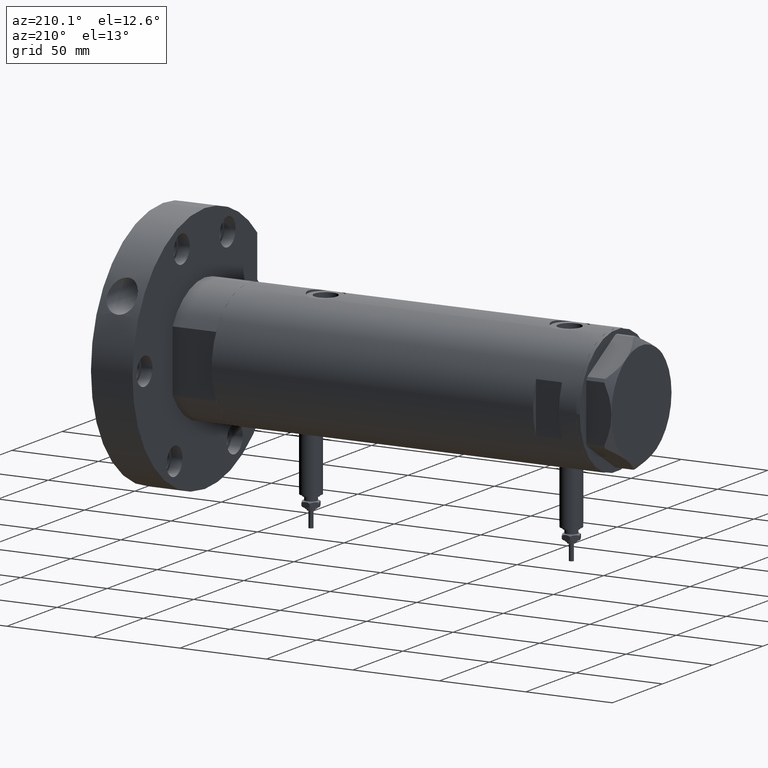
[diagram: clean part render]
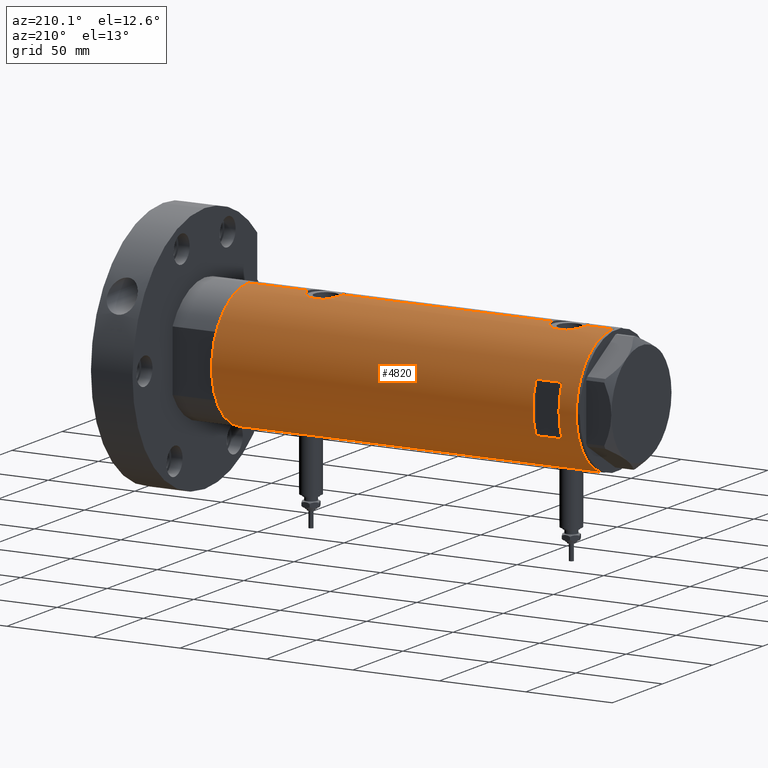
[diagram: same view with one face highlighted and labeled with its STEP entity id]
A machine part, auxiliary view. The second image highlights one B-rep face of the part: STEP entity #4820.
In plain terms, the highlighted cylindrical surface (partial cylindrical patch) has radius 36.5 mm, axis along (-1, -0, 0).
Its self-contained STEP definition (entity closure, byte-faithful):
#3 = ORIENTED_EDGE ( 'NONE', *, *, #4363, .F. ) ;
#47 = CARTESIAN_POINT ( 'NONE',  ( -36.30200038006935870, 3.811959488093746184, 86.36972104836003439 ) ) ;
#60 = EDGE_LOOP ( 'NONE', ( #7366, #5162, #4584, #5704 ) ) ;
#85 = CARTESIAN_POINT ( 'NONE',  ( 35.83170458557578542, 6.955065627744197343, -53.41058328087536466 ) ) ;
#128 = CARTESIAN_POINT ( 'NONE',  ( 35.79715675463678792, 7.130463293899339305, -53.58444415894006596 ) ) ;
#149 = CARTESIAN_POINT ( 'NONE',  ( 35.59366931936804690, 8.089554397885864390, -66.49927319087814226 ) ) ;
#160 = CARTESIAN_POINT ( 'NONE',  ( -35.96805604460922012, 6.209309709790233889, 80.57887241731827999 ) ) ;
#179 = CARTESIAN_POINT ( 'NONE',  ( -36.50000000000000000, 4.469960493350315609E-15, -75.35000000000000853 ) ) ;
#182 = CARTESIAN_POINT ( 'NONE',  ( 35.79766710091575987, 7.135341284989892507, -67.62350520560906375 ) ) ;
#195 = CARTESIAN_POINT ( 'NONE',  ( -36.11206433103227909, 5.308658295084049072, 78.09515351959024088 ) ) ;
#211 = VECTOR ( 'NONE', #4695, 1000.000000000000000 ) ;
#217 = VERTEX_POINT ( 'NONE', #179 ) ;
#218 = CARTESIAN_POINT ( 'NONE',  ( -36.50000000000000000, 4.469960816887837641E-15, -105.4000000000000057 ) ) ;
#230 = EDGE_CURVE ( 'NONE', #5549, #217, #6551, .T. ) ;
#231 = VERTEX_POINT ( 'NONE', #3634 ) ;
#233 = CARTESIAN_POINT ( 'NONE',  ( 14.49137674618942384, 33.50000000000000000, 80.40000000000003411 ) ) ;
#234 = B_SPLINE_CURVE_WITH_KNOTS ( 'NONE', 3,
 ( #3720, #2501, #806, #6017, #4332, #5517, #7165, #6675, #3638, #3111, #728, #182, #5473, #149, #3193, #4294, #3755, #5434 ),
 .UNSPECIFIED., .F., .F.,
 ( 4, 2, 2, 2, 2, 2, 2, 2, 4 ),
 ( -1.084202172485504434E-18, 0.002973648994175745811, 0.003717061242719678360, 0.004460473491263610910, 0.005947297988351454325, 0.007434122485439297739, 0.008920946982527140287, 0.01040777147961498283, 0.01189459597670282365 ),
 .UNSPECIFIED. ) ;
#240 = CARTESIAN_POINT ( 'NONE',  ( -36.35033317675381426, 3.306376218664582645, 76.09229280583950583 ) ) ;
#318 = LINE ( 'NONE', #2670, #3083 ) ;
#323 = DIRECTION ( 'NONE',  ( -0.000000000000000000, -0.000000000000000000, -1.000000000000000000 ) ) ;
#356 = CARTESIAN_POINT ( 'NONE',  ( -36.50000000000000000, 4.469960493350315609E-15, 75.14999999999999147 ) ) ;
#361 = VECTOR ( 'NONE', #7031, 1000.000000000000000 ) ;
#364 = VECTOR ( 'NONE', #3245, 1000.000000000000000 ) ;
#371 = CARTESIAN_POINT ( 'NONE',  ( -36.49292802938587954, 0.8230716655928912440, -75.30906938753517466 ) ) ;
#400 = CARTESIAN_POINT ( 'NONE',  ( 35.83170458557578542, 6.955065627744196455, 87.58941671912465665 ) ) ;
#409 = CARTESIAN_POINT ( 'NONE',  ( 14.49137674618942739, 33.50000000000000000, 95.40000000000001990 ) ) ;
#411 = CARTESIAN_POINT ( 'NONE',  ( -36.30200038006935870, 3.811959488093740411, -64.13027895163995140 ) ) ;
#428 = ORIENTED_EDGE ( 'NONE', *, *, #5585, .F. ) ;
#429 = FACE_OUTER_BOUND ( 'NONE', #7013, .T. ) ;
#444 = CARTESIAN_POINT ( 'NONE',  ( -36.50000000000000711, 0.4083036190459274350, -75.35000000000002274 ) ) ;
#479 = CARTESIAN_POINT ( 'NONE',  ( -35.98846897517729815, 6.089479646546500646, -67.67765108453481560 ) ) ;
#485 = ORIENTED_EDGE ( 'NONE', *, *, #1210, .F. ) ;
#497 = CARTESIAN_POINT ( 'NONE',  ( -14.49137674618942739, 33.50000000000000000, 95.40000000000001990 ) ) ;
#513 = EDGE_CURVE ( 'NONE', #3951, #3988, #3260, .T. ) ;
#541 = EDGE_CURVE ( 'NONE', #2305, #5549, #6074, .T. ) ;
#666 = CARTESIAN_POINT ( 'NONE',  ( 36.29420020483469500, 3.877527130731365901, 71.17901025599704212 ) ) ;
#673 = LINE ( 'NONE', #1798, #1859 ) ;
#696 = CARTESIAN_POINT ( 'NONE',  ( 35.29999999999999716, 9.282241108697832033, -56.87978495245235422 ) ) ;
#728 = CARTESIAN_POINT ( 'NONE',  ( 35.93456089024233790, 6.410413305453382726, -68.29085963204144605 ) ) ;
#740 = CARTESIAN_POINT ( 'NONE',  ( -35.98846897517731236, 6.089479646546502423, 82.82234891546522704 ) ) ;
#778 = CARTESIAN_POINT ( 'NONE',  ( -35.96793274302675059, 6.210029014836887740, 82.21694237679317041 ) ) ;
#806 = CARTESIAN_POINT ( 'NONE',  ( 36.45853166336080164, 1.985123042546143024, -70.45162670417735740 ) ) ;
#814 = CARTESIAN_POINT ( 'NONE',  ( -36.50000000000000000, 1.407447864834978200E-15, 87.65000000000000568 ) ) ;
#827 = ORIENTED_EDGE ( 'NONE', *, *, #6314, .F. ) ;
#904 = CARTESIAN_POINT ( 'NONE',  ( 36.29611582693039651, 3.878758190381167648, 89.63044989099550719 ) ) ;
#907 = LINE ( 'NONE', #7299, #364 ) ;
#938 = CARTESIAN_POINT ( 'NONE',  ( -36.30181775639988473, 3.813582387016785535, 76.43163942425562141 ) ) ;
#950 = CARTESIAN_POINT ( 'NONE',  ( -36.16126303108063667, 4.966520032693295228, -65.28358772254718190 ) ) ;
#957 = EDGE_CURVE ( 'NONE', #2187, #4608, #2934, .T. ) ;
#977 = CARTESIAN_POINT ( 'NONE',  ( -36.44628644024910358, 2.015372769639943495, 75.46971871986416147 ) ) ;
#994 = CARTESIAN_POINT ( 'NONE',  ( -36.26695135241003953, 4.128455078791312793, -73.81037591644739848 ) ) ;
#1020 = CARTESIAN_POINT ( 'NONE',  ( 36.41717583764487642, 2.469534783404760514, 90.09348011175671900 ) ) ;
#1029 = CARTESIAN_POINT ( 'NONE',  ( -36.11206433103226487, 5.308658295084045520, -72.40484648040975912 ) ) ;
#1055 = CARTESIAN_POINT ( 'NONE',  ( 14.49137674618942562, 33.50000000000000000, -105.4000000000000057 ) ) ;
#1059 = CARTESIAN_POINT ( 'NONE',  ( -36.09617453667821252, 5.415318599347968664, -65.97293357327090746 ) ) ;
#1078 = EDGE_CURVE ( 'NONE', #3263, #2187, #2054, .T. ) ;
#1140 = CARTESIAN_POINT ( 'NONE',  ( 36.50000000000000000, 0.000000000000000000, -105.4000000000000057 ) ) ;
#1172 = CARTESIAN_POINT ( 'NONE',  ( 36.50000000000000000, 4.344614706140975428E-19, 90.39999999999999147 ) ) ;
#1176 = EDGE_CURVE ( 'NONE', #6548, #2414, #6574, .T. ) ;
#1210 = EDGE_CURVE ( 'NONE', #4623, #2026, #4812, .T. ) ;
#1250 = CARTESIAN_POINT ( 'NONE',  ( 0.000000000000000000, 0.000000000000000000, 105.4000000000000057 ) ) ;
#1252 = CARTESIAN_POINT ( 'NONE',  ( 36.18948008481302026, 4.772042575486197258, 71.59822368756843503 ) ) ;
#1256 = CARTESIAN_POINT ( 'NONE',  ( 36.29611582693039651, 3.878758190381166759, -51.36955010900450702 ) ) ;
#1288 = CARTESIAN_POINT ( 'NONE',  ( 35.79766710091575987, 7.135341284989890731, 73.37649479439095046 ) ) ;
#1292 = CARTESIAN_POINT ( 'NONE',  ( 36.40008489419981430, 2.709263960908028679, -50.97081895403610474 ) ) ;
#1304 = DIRECTION ( 'NONE',  ( 0.000000000000000000, 0.000000000000000000, 1.000000000000000000 ) ) ;
#1323 = CARTESIAN_POINT ( 'NONE',  ( -36.01679413914728656, 5.919813138266330377, 83.41499691047036436 ) ) ;
#1329 = CARTESIAN_POINT ( 'NONE',  ( 36.00145998247696610, 6.026272765084655703, -52.60449611787613122 ) ) ;
#1366 = CARTESIAN_POINT ( 'NONE',  ( -36.06690560274405044, 5.606949625760678124, 78.63114076041068756 ) ) ;
#1407 = CARTESIAN_POINT ( 'NONE',  ( 36.13018480315371761, 5.199168368309160293, 71.84353501791950691 ) ) ;
#1439 = CARTESIAN_POINT ( 'NONE',  ( -36.26695135241003953, 4.128455078791301247, 76.68962408355262994 ) ) ;
#1498 = CARTESIAN_POINT ( 'NONE',  ( -36.40902375114221456, 2.582415566883933256, -74.79521691469689415 ) ) ;
#1519 = CARTESIAN_POINT ( 'NONE',  ( 0.000000000000000000, 0.000000000000000000, -105.4000000000000057 ) ) ;
#1535 = CARTESIAN_POINT ( 'NONE',  ( -35.96793274302674348, 6.210029014836887740, -68.28305762320682959 ) ) ;
#1601 = CARTESIAN_POINT ( 'NONE',  ( 35.93435287561198521, 6.411571491280765756, 88.08988644922843037 ) ) ;
#1645 = CARTESIAN_POINT ( 'NONE',  ( -36.39522946636253664, 2.769519034821244396, -74.70663923731272860 ) ) ;
#1798 = CARTESIAN_POINT ( 'NONE',  ( -36.50000000000000000, 4.469960816887837641E-15, -105.4000000000000057 ) ) ;
#1859 = VECTOR ( 'NONE', #6426, 1000.000000000000000 ) ;
#1867 = CARTESIAN_POINT ( 'NONE',  ( -36.44504802628534890, 2.011764947064737186, 87.32093644908518115 ) ) ;
#1894 = EDGE_CURVE ( 'NONE', #2305, #3454, #2165, .T. ) ;
#1902 = CARTESIAN_POINT ( 'NONE',  ( -36.49999999999999289, 0.4137727629436736554, 87.65000000000000568 ) ) ;
#1926 = AXIS2_PLACEMENT_3D ( 'NONE', #4609, #7451, #3359 ) ;
#1938 = CARTESIAN_POINT ( 'NONE',  ( -36.16126303108063667, 4.966520032693296116, 85.21641227745284652 ) ) ;
#1941 = CARTESIAN_POINT ( 'NONE',  ( 36.36225053217120262, 3.177096004138046048, 70.91483975524022298 ) ) ;
#1984 = CARTESIAN_POINT ( 'NONE',  ( 36.49999999999999289, 1.005842003469121781, 70.40000000000001990 ) ) ;
#2026 = VERTEX_POINT ( 'NONE', #2490 ) ;
#2037 = DIRECTION ( 'NONE',  ( -0.000000000000000000, -0.000000000000000000, -1.000000000000000000 ) ) ;
#2054 = CIRCLE ( 'NONE', #1926, 36.50000000000000000 ) ;
#2066 = CARTESIAN_POINT ( 'NONE',  ( -36.26643311080166399, 4.132772529026634167, -64.39380594730117480 ) ) ;
#2105 = VERTEX_POINT ( 'NONE', #2452 ) ;
#2110 = CARTESIAN_POINT ( 'NONE',  ( -36.46462099658054967, 1.618684470865504821, -63.05975602975154004 ) ) ;
#2165 = LINE ( 'NONE', #2377, #211 ) ;
#2182 = CARTESIAN_POINT ( 'NONE',  ( -36.19624103943463211, 4.708090268046848159, -64.96938778553862903 ) ) ;
#2187 = VERTEX_POINT ( 'NONE', #409 ) ;
#2201 = EDGE_CURVE ( 'NONE', #4608, #3719, #7323, .T. ) ;
#2217 = CARTESIAN_POINT ( 'NONE',  ( -36.35033317675379294, 3.306376218664579980, -74.40770719416053680 ) ) ;
#2305 = VERTEX_POINT ( 'NONE', #1140 ) ;
#2377 = CARTESIAN_POINT ( 'NONE',  ( 36.50000000000000000, 0.000000000000000000, -105.4000000000000057 ) ) ;
#2399 = CARTESIAN_POINT ( 'NONE',  ( -35.96094343308266161, 6.249843792257633979, 81.81087110344569169 ) ) ;
#2405 = CARTESIAN_POINT ( 'NONE',  ( 35.69321149401849880, 7.633476302278300096, -54.13536927833557399 ) ) ;
#2414 = VERTEX_POINT ( 'NONE', #7109 ) ;
#2416 = VECTOR ( 'NONE', #2037, 1000.000000000000000 ) ;
#2439 = CARTESIAN_POINT ( 'NONE',  ( -36.50000000000000000, 1.407447864834978200E-15, 87.65000000000000568 ) ) ;
#2447 = CARTESIAN_POINT ( 'NONE',  ( 36.45954139109320380, 1.735915671103592794, -50.74863218852989633 ) ) ;
#2452 = CARTESIAN_POINT ( 'NONE',  ( 35.29999999999999716, 9.282241108697832033, -64.32021504754764862 ) ) ;
#2456 = EDGE_CURVE ( 'NONE', #2766, #3988, #4261, .T. ) ;
#2478 = CARTESIAN_POINT ( 'NONE',  ( 36.00287854058830561, 6.017835360302999703, 72.39811882818277411 ) ) ;
#2483 = CARTESIAN_POINT ( 'NONE',  ( 36.18937351723702989, 4.773052864917637805, -51.79864006881157934 ) ) ;
#2490 = CARTESIAN_POINT ( 'NONE',  ( -36.50000000000000000, 4.469960493350315609E-15, 75.14999999999999147 ) ) ;
#2501 = CARTESIAN_POINT ( 'NONE',  ( 36.50000000000000000, 1.005842003469122004, -70.59999999999999432 ) ) ;
#2513 = CARTESIAN_POINT ( 'NONE',  ( 35.72860827204724643, 7.471059959301278752, 73.73474849525591424 ) ) ;
#2531 = ORIENTED_EDGE ( 'NONE', *, *, #7207, .F. ) ;
#2547 = CARTESIAN_POINT ( 'NONE',  ( -36.03936508729894683, 5.782103729777506196, 83.79870532603797528 ) ) ;
#2553 = CARTESIAN_POINT ( 'NONE',  ( 35.29999999999999716, 9.282241108697835585, -105.4000000000000057 ) ) ;
#2632 = CARTESIAN_POINT ( 'NONE',  ( 36.40008489419980720, 2.709263960908030899, 90.02918104596392368 ) ) ;
#2635 = CARTESIAN_POINT ( 'NONE',  ( -36.50000000000000000, 4.469960816887837641E-15, -105.4000000000000057 ) ) ;
#2670 = CARTESIAN_POINT ( 'NONE',  ( -36.50000000000000000, 4.469960816887837641E-15, -105.4000000000000057 ) ) ;
#2707 = CARTESIAN_POINT ( 'NONE',  ( -36.50000000000000000, 0.4083036190459313763, 75.14999999999996305 ) ) ;
#2710 = CARTESIAN_POINT ( 'NONE',  ( 35.69321149401851301, 7.633476302278301873, 86.86463072166442601 ) ) ;
#2756 = CARTESIAN_POINT ( 'NONE',  ( -36.39638105034455151, 2.774378062517169674, -63.48456667300896328 ) ) ;
#2766 = VERTEX_POINT ( 'NONE', #5112 ) ;
#2778 = CARTESIAN_POINT ( 'NONE',  ( 36.48988646280794512, 0.9921857666168150125, 90.36328115134425332 ) ) ;
#2787 = DIRECTION ( 'NONE',  ( 0.000000000000000000, 1.000000000000000000, -4.562560375171875891E-15 ) ) ;
#2788 = CARTESIAN_POINT ( 'NONE',  ( -36.05296344941216802, 5.695624845616830356, -71.68154856536759212 ) ) ;
#2934 = LINE ( 'NONE', #1055, #3509 ) ;
#2976 = CARTESIAN_POINT ( 'NONE',  ( -36.49297130294515057, 0.8204796224394288462, 87.60931692217734224 ) ) ;
#2993 = VERTEX_POINT ( 'NONE', #1172 ) ;
#3008 = EDGE_CURVE ( 'NONE', #3719, #3263, #3011, .T. ) ;
#3011 = LINE ( 'NONE', #6456, #361 ) ;
#3012 = CARTESIAN_POINT ( 'NONE',  ( 35.59366931936805400, 8.089554397885866166, 74.50072680912187195 ) ) ;
#3051 = CARTESIAN_POINT ( 'NONE',  ( 36.12877841835538106, 5.208882251161921495, -52.04946835209709377 ) ) ;
#3083 = VECTOR ( 'NONE', #4992, 1000.000000000000000 ) ;
#3084 = CARTESIAN_POINT ( 'NONE',  ( -36.19624103943463922, 4.708090268046847271, 85.53061221446137097 ) ) ;
#3109 = CARTESIAN_POINT ( 'NONE',  ( 36.50000000000000000, 0.000000000000000000, -70.59999999999999432 ) ) ;
#3111 = CARTESIAN_POINT ( 'NONE',  ( 36.00287854058831272, 6.017835360302997039, -68.60188117181725431 ) ) ;
#3112 = ORIENTED_EDGE ( 'NONE', *, *, #5513, .T. ) ;
#3121 = CARTESIAN_POINT ( 'NONE',  ( -36.01524716445113938, 5.931039972055517140, 79.38669268135345192 ) ) ;
#3193 = CARTESIAN_POINT ( 'NONE',  ( 35.52737867031126484, 8.373910777960910323, -66.08860356717067930 ) ) ;
#3242 = CARTESIAN_POINT ( 'NONE',  ( 36.12877841835538817, 5.208882251161925936, 88.95053164790290623 ) ) ;
#3245 = DIRECTION ( 'NONE',  ( 0.000000000000000000, 0.000000000000000000, 1.000000000000000000 ) ) ;
#3252 = CARTESIAN_POINT ( 'NONE',  ( -36.01679413914727235, 5.919813138266325048, -67.08500308952962143 ) ) ;
#3260 = LINE ( 'NONE', #5589, #2416 ) ;
#3263 = VERTEX_POINT ( 'NONE', #497 ) ;
#3275 = CARTESIAN_POINT ( 'NONE',  ( -36.19597718496777361, 4.710322426433901200, 77.27148389237981974 ) ) ;
#3288 = CARTESIAN_POINT ( 'NONE',  ( -36.36587679577596077, 3.131448301962866054, -74.51282465573619618 ) ) ;
#3354 = CARTESIAN_POINT ( 'NONE',  ( 36.45954139109321090, 1.735915671103594349, 90.25136781147007525 ) ) ;
#3359 = DIRECTION ( 'NONE',  ( 1.000000000000000000, 1.776356839400250465E-15, 0.000000000000000000 ) ) ;
#3362 = CARTESIAN_POINT ( 'NONE',  ( -36.46598788992681506, 1.625721481788708900, -75.14872046713838927 ) ) ;
#3394 = CARTESIAN_POINT ( 'NONE',  ( -36.11199073531172132, 5.309184630646989866, -65.79587159233167881 ) ) ;
#3454 = VERTEX_POINT ( 'NONE', #3109 ) ;
#3467 = DIRECTION ( 'NONE',  ( -0.000000000000000000, -0.000000000000000000, -1.000000000000000000 ) ) ;
#3509 = VECTOR ( 'NONE', #3467, 1000.000000000000000 ) ;
#3541 = ORIENTED_EDGE ( 'NONE', *, *, #6859, .F. ) ;
#3543 = DIRECTION ( 'NONE',  ( 1.000000000000000000, 0.000000000000000000, 0.000000000000000000 ) ) ;
#3583 = CARTESIAN_POINT ( 'NONE',  ( 35.93456089024233790, 6.410413305453380950, 72.70914036795855395 ) ) ;
#3585 = CARTESIAN_POINT ( 'NONE',  ( 35.29999999999999716, 9.282241108697832033, 76.67978495245235138 ) ) ;
#3587 = CARTESIAN_POINT ( 'NONE',  ( 36.48988646280793802, 0.9921857666168130141, -50.63671884865574668 ) ) ;
#3613 = CARTESIAN_POINT ( 'NONE',  ( -36.11199073531170001, 5.309184630646988090, 84.70412840766836382 ) ) ;
#3616 = CARTESIAN_POINT ( 'NONE',  ( 35.52737867031127195, 8.373910777960903218, 74.91139643282933491 ) ) ;
#3634 = CARTESIAN_POINT ( 'NONE',  ( -36.50000000000000000, -5.849986204104554638E-16, -62.85000000000000142 ) ) ;
#3638 = CARTESIAN_POINT ( 'NONE',  ( 36.13018480315371761, 5.199168368309158517, -69.15646498208050730 ) ) ;
#3650 = CARTESIAN_POINT ( 'NONE',  ( -36.06675137892953131, 5.607935153446980792, 84.16681826008758094 ) ) ;
#3658 = CARTESIAN_POINT ( 'NONE',  ( 36.49999999999999289, 0.4961820988516180142, -50.59999999999998721 ) ) ;
#3692 = CARTESIAN_POINT ( 'NONE',  ( -36.26643311080165688, 4.132772529026634167, 86.10619405269881099 ) ) ;
#3719 = VERTEX_POINT ( 'NONE', #6512 ) ;
#3720 = CARTESIAN_POINT ( 'NONE',  ( 36.50000000000000000, 0.000000000000000000, -70.59999999999999432 ) ) ;
#3730 = CARTESIAN_POINT ( 'NONE',  ( -36.49292802938586533, 0.8230716655928910219, 75.19093061246483956 ) ) ;
#3755 = CARTESIAN_POINT ( 'NONE',  ( 35.34894515018992678, 9.096104616284845790, -64.78464083466536749 ) ) ;
#3795 = B_SPLINE_CURVE_WITH_KNOTS ( 'NONE', 3,
 ( #6261, #3845, #6844, #2710, #7296, #6809, #400, #1601, #5034, #3242, #5104, #904, #3922, #2632, #1020, #6775, #3354, #2778, #5569, #5685 ),
 .UNSPECIFIED., .F., .F.,
 ( 4, 2, 2, 2, 2, 2, 2, 2, 2, 4 ),
 ( 1.551583845779545699E-17, 0.002977391289382861662, 0.003721739111728563851, 0.004466086934074266906, 0.005954782578765698171, 0.007443478223457130304, 0.008932173868148563303, 0.009676521690494287176, 0.01042086951284001105, 0.01190956515753145012 ),
 .UNSPECIFIED. ) ;
#3818 = CARTESIAN_POINT ( 'NONE',  ( -35.96094343308264740, 6.249843792257632202, -68.68912889655432252 ) ) ;
#3845 = CARTESIAN_POINT ( 'NONE',  ( 35.39804469700249001, 8.909380959553013568, 85.05053164482841055 ) ) ;
#3848 = LINE ( 'NONE', #2553, #4156 ) ;
#3854 = CARTESIAN_POINT ( 'NONE',  ( -36.01524716445114649, 5.931039972055518916, -71.11330731864657650 ) ) ;
#3862 = CARTESIAN_POINT ( 'NONE',  ( 36.50000000000000000, 0.000000000000000000, 105.4000000000000057 ) ) ;
#3906 = B_SPLINE_CURVE_WITH_KNOTS ( 'NONE', 3,
 ( #6421, #5844, #5887, #2405, #4725, #128, #85, #4081, #1329, #3051, #2483, #1256, #7074, #1292, #7001, #4691, #2447, #3587, #3658, #4195 ),
 .UNSPECIFIED., .F., .F.,
 ( 4, 2, 2, 2, 2, 2, 2, 2, 2, 4 ),
 ( 1.551583845779545699E-17, 0.002977391289382848218, 0.003721739111728565152, 0.004466086934074281652, 0.005954782578765715519, 0.007443478223457148518, 0.008932173868148582385, 0.009676521690494299319, 0.01042086951284001625, 0.01190956515753145185 ),
 .UNSPECIFIED. ) ;
#3922 = CARTESIAN_POINT ( 'NONE',  ( 36.34264078466111414, 3.418717136061404371, 89.81049034040754009 ) ) ;
#3951 = VERTEX_POINT ( 'NONE', #5153 ) ;
#3953 = DIRECTION ( 'NONE',  ( 0.000000000000000000, 0.000000000000000000, 1.000000000000000000 ) ) ;
#3965 = CARTESIAN_POINT ( 'NONE',  ( -36.47290054070997201, 1.420408912806972124, -63.01013018339985194 ) ) ;
#3988 = VERTEX_POINT ( 'NONE', #3585 ) ;
#3990 = CARTESIAN_POINT ( 'NONE',  ( 36.50000000000000000, 0.000000000000000000, -105.4000000000000057 ) ) ;
#4003 = CARTESIAN_POINT ( 'NONE',  ( 36.50000000000000000, 4.344609657431182014E-19, -50.60000000000000853 ) ) ;
#4081 = CARTESIAN_POINT ( 'NONE',  ( 35.93435287561197811, 6.411571491280765756, -52.91011355077158385 ) ) ;
#4156 = VECTOR ( 'NONE', #323, 1000.000000000000000 ) ;
#4189 = CARTESIAN_POINT ( 'NONE',  ( -36.43371204571226940, 2.206934156026287397, 87.25097281670997518 ) ) ;
#4195 = CARTESIAN_POINT ( 'NONE',  ( 36.50000000000000000, 4.344609657431182014E-19, -50.60000000000000853 ) ) ;
#4197 = ORIENTED_EDGE ( 'NONE', *, *, #230, .T. ) ;
#4261 = B_SPLINE_CURVE_WITH_KNOTS ( 'NONE', 3,
 ( #7221, #1984, #7144, #1941, #4309, #666, #7179, #1252, #1407, #2478, #3583, #1288, #2513, #3012, #3616, #5334, #4267, #5956 ),
 .UNSPECIFIED., .F., .F.,
 ( 4, 2, 2, 2, 2, 2, 2, 2, 4 ),
 ( -8.673617379884035472E-19, 0.002973648994175663411, 0.003717061242719586420, 0.004460473491263509428, 0.005947297988351372793, 0.007434122485439235289, 0.008920946982527096919, 0.01040777147961496202, 0.01189459597670282365 ),
 .UNSPECIFIED. ) ;
#4264 = CARTESIAN_POINT ( 'NONE',  ( -35.99530513653993324, 6.049346314076207598, 79.77667416964166591 ) ) ;
#4267 = CARTESIAN_POINT ( 'NONE',  ( 35.34894515018993388, 9.096104616284849342, 76.21535916533458987 ) ) ;
#4294 = CARTESIAN_POINT ( 'NONE',  ( 35.40502660484482789, 8.876998817796907915, -65.23098724071236632 ) ) ;
#4309 = CARTESIAN_POINT ( 'NONE',  ( 36.34070350304396158, 3.414301401755541310, 70.99763782624093267 ) ) ;
#4332 = CARTESIAN_POINT ( 'NONE',  ( 36.34070350304396868, 3.414301401755541754, -70.00236217375906733 ) ) ;
#4340 = CARTESIAN_POINT ( 'NONE',  ( -36.36587679577596077, 3.131448301962866054, 75.98717534426381803 ) ) ;
#4363 = EDGE_CURVE ( 'NONE', #5350, #2766, #4571, .T. ) ;
#4393 = CARTESIAN_POINT ( 'NONE',  ( -36.44504802628534890, 2.011764947064735409, -63.17906355091480464 ) ) ;
#4434 = DIRECTION ( 'NONE',  ( 0.000000000000000000, 4.625929269271492422E-15, 1.000000000000000000 ) ) ;
#4435 = CARTESIAN_POINT ( 'NONE',  ( -36.49297130294515057, 0.8204796224394284021, -62.89068307782267908 ) ) ;
#4471 = CARTESIAN_POINT ( 'NONE',  ( -36.50000000000000000, 4.469960493350315609E-15, -75.35000000000000853 ) ) ;
#4571 = LINE ( 'NONE', #3990, #7103 ) ;
#4584 = ORIENTED_EDGE ( 'NONE', *, *, #957, .F. ) ;
#4608 = VERTEX_POINT ( 'NONE', #233 ) ;
#4609 = CARTESIAN_POINT ( 'NONE',  ( 0.000000000000000000, 0.000000000000000000, 95.40000000000001990 ) ) ;
#4623 = VERTEX_POINT ( 'NONE', #814 ) ;
#4691 = CARTESIAN_POINT ( 'NONE',  ( 36.44688397185920792, 1.983417953489134300, -50.79550042351748829 ) ) ;
#4695 = DIRECTION ( 'NONE',  ( 0.000000000000000000, 0.000000000000000000, 1.000000000000000000 ) ) ;
#4717 = CARTESIAN_POINT ( 'NONE',  ( -36.16083474549354548, 4.969527450313384165, 77.58794680877252858 ) ) ;
#4725 = CARTESIAN_POINT ( 'NONE',  ( 35.72794581931695745, 7.469526493268201506, -53.94660203271736520 ) ) ;
#4793 = CARTESIAN_POINT ( 'NONE',  ( -36.36688032967141027, 3.133094607697489931, 86.82336432637509915 ) ) ;
#4806 = CARTESIAN_POINT ( 'NONE',  ( -36.50000000000000000, -5.849986204104554638E-16, -62.85000000000000142 ) ) ;
#4812 = B_SPLINE_CURVE_WITH_KNOTS ( 'NONE', 3,
 ( #2439, #1902, #2976, #5300, #7107, #1867, #4189, #4830, #4793, #47, #3692, #3084, #1938, #3613, #6564, #3650, #2547, #1323, #5990, #740, #778, #2399, #5412, #160, #4264, #3121, #6607, #1366, #5443, #195, #4717, #3275, #1439, #938, #240, #4340, #6807, #6684, #977, #5605, #3730, #2707, #356 ),
 .UNSPECIFIED., .F., .F.,
 ( 4, 2, 2, 2, 2, 2, 2, 2, 1, 2, 2, 2, 2, 2, 2, 2, 2, 2, 2, 2, 2, 4 ),
 ( 1.367394070233553059E-18, 0.001223527801214184920, 0.001835291701821280957, 0.002447055602428376345, 0.003670583403642568420, 0.004894111204856760496, 0.006117639006070953005, 0.006729402906678031912, 0.007341166807285110819, 0.007952930707892187992, 0.008564694608499267767, 0.009788222409713425581, 0.01101175021092758340, 0.01223527801214174121, 0.01284704191274879843, 0.01345880581335585913, 0.01468233361456997531, 0.01590586141578409149, 0.01651762531639115392, 0.01712938921699821287, 0.01835291701821231691, 0.01957644481942642095 ),
 .UNSPECIFIED. ) ;
#4820 = ADVANCED_FACE ( 'NONE', ( #6216, #429 ), #6838, .T. ) ;
#4830 = CARTESIAN_POINT ( 'NONE',  ( -36.39638105034455862, 2.774378062517170562, 87.01543332699102962 ) ) ;
#4863 = AXIS2_PLACEMENT_3D ( 'NONE', #6854, #4434, #2787 ) ;
#4927 = ORIENTED_EDGE ( 'NONE', *, *, #1894, .F. ) ;
#4961 = VECTOR ( 'NONE', #1304, 1000.000000000000000 ) ;
#4964 = CARTESIAN_POINT ( 'NONE',  ( -36.06690560274406465, 5.606949625760679901, -71.86885923958934086 ) ) ;
#4992 = DIRECTION ( 'NONE',  ( 0.000000000000000000, 0.000000000000000000, 1.000000000000000000 ) ) ;
#5013 = DIRECTION ( 'NONE',  ( 0.000000000000000000, 0.000000000000000000, 1.000000000000000000 ) ) ;
#5034 = CARTESIAN_POINT ( 'NONE',  ( 36.00145998247696610, 6.026272765084661032, 88.39550388212386167 ) ) ;
#5104 = CARTESIAN_POINT ( 'NONE',  ( 36.18937351723702989, 4.773052864917641358, 89.20135993118843487 ) ) ;
#5112 = CARTESIAN_POINT ( 'NONE',  ( 36.50000000000000000, 0.000000000000000000, 70.40000000000000568 ) ) ;
#5114 = CARTESIAN_POINT ( 'NONE',  ( -36.30181775639987052, 3.813582387016787312, -74.06836057574437859 ) ) ;
#5153 = CARTESIAN_POINT ( 'NONE',  ( 35.29999999999999716, 9.282241108697832033, 84.12021504754764578 ) ) ;
#5162 = ORIENTED_EDGE ( 'NONE', *, *, #2201, .F. ) ;
#5300 = CARTESIAN_POINT ( 'NONE',  ( -36.47290054070997911, 1.420408912806973678, 87.48986981660016227 ) ) ;
#5332 = DIRECTION ( 'NONE',  ( 0.000000000000000000, 0.000000000000000000, 1.000000000000000000 ) ) ;
#5334 = CARTESIAN_POINT ( 'NONE',  ( 35.40502660484482078, 8.876998817796904362, 75.76901275928764790 ) ) ;
#5350 = VERTEX_POINT ( 'NONE', #4003 ) ;
#5412 = CARTESIAN_POINT ( 'NONE',  ( -35.96088929326157313, 6.250155299092687855, 80.99389505236753450 ) ) ;
#5420 = EDGE_CURVE ( 'NONE', #5835, #5350, #3906, .T. ) ;
#5434 = CARTESIAN_POINT ( 'NONE',  ( 35.29999999999999716, 9.282241108697832033, -64.32021504754764862 ) ) ;
#5443 = CARTESIAN_POINT ( 'NONE',  ( -36.09643313249890184, 5.413601294342284653, 78.26992226608150816 ) ) ;
#5473 = CARTESIAN_POINT ( 'NONE',  ( 35.72860827204724643, 7.471059959301278752, -67.26525150474407155 ) ) ;
#5513 = EDGE_CURVE ( 'NONE', #5835, #2105, #3848, .T. ) ;
#5517 = CARTESIAN_POINT ( 'NONE',  ( 36.29420020483473053, 3.877527130731367233, -69.82098974400294367 ) ) ;
#5549 = VERTEX_POINT ( 'NONE', #2635 ) ;
#5569 = CARTESIAN_POINT ( 'NONE',  ( 36.49999999999999289, 0.4961820988516178477, 90.39999999999997726 ) ) ;
#5585 = EDGE_CURVE ( 'NONE', #2993, #6548, #907, .T. ) ;
#5589 = CARTESIAN_POINT ( 'NONE',  ( 35.29999999999999716, 9.282241108697835585, -105.4000000000000057 ) ) ;
#5605 = CARTESIAN_POINT ( 'NONE',  ( -36.46598788992681506, 1.625721481788709344, 75.35127953286161073 ) ) ;
#5620 = CARTESIAN_POINT ( 'NONE',  ( -36.44628644024910358, 2.015372769639943051, -75.03028128013583853 ) ) ;
#5662 = CARTESIAN_POINT ( 'NONE',  ( -36.43371204571226230, 2.206934156026287397, -63.24902718329002482 ) ) ;
#5670 = CARTESIAN_POINT ( 'NONE',  ( 0.000000000000000000, 0.000000000000000000, -105.4000000000000057 ) ) ;
#5685 = CARTESIAN_POINT ( 'NONE',  ( 36.50000000000000000, 4.344614706140975428E-19, 90.39999999999999147 ) ) ;
#5704 = ORIENTED_EDGE ( 'NONE', *, *, #1078, .F. ) ;
#5728 = CARTESIAN_POINT ( 'NONE',  ( -36.06675137892952421, 5.607935153446979903, -66.33318173991243327 ) ) ;
#5825 = AXIS2_PLACEMENT_3D ( 'NONE', #5670, #5013, #7355 ) ;
#5835 = VERTEX_POINT ( 'NONE', #696 ) ;
#5844 = CARTESIAN_POINT ( 'NONE',  ( 35.39804469700249712, 8.909380959553015344, -55.94946835517159656 ) ) ;
#5887 = CARTESIAN_POINT ( 'NONE',  ( 35.52347503888660896, 8.410566959990461555, -55.10046032740658006 ) ) ;
#5956 = CARTESIAN_POINT ( 'NONE',  ( 35.29999999999999716, 9.282241108697832033, 76.67978495245235138 ) ) ;
#5969 = AXIS2_PLACEMENT_3D ( 'NONE', #1250, #5332, #3543 ) ;
#5990 = CARTESIAN_POINT ( 'NONE',  ( -35.99700617875953412, 6.038972911021586398, 83.02333185798322290 ) ) ;
#6017 = CARTESIAN_POINT ( 'NONE',  ( 36.36225053217121683, 3.177096004138046048, -70.08516024475980544 ) ) ;
#6074 = CIRCLE ( 'NONE', #5825, 36.50000000000000000 ) ;
#6089 = B_SPLINE_CURVE_WITH_KNOTS ( 'NONE', 3,
 ( #4806, #7155, #4435, #3965, #2110, #4393, #5662, #2756, #7455, #411, #2066, #2182, #950, #3394, #1059, #5728, #7344, #3252, #6784, #479, #1535, #3818, #7305, #7384, #6234, #3854, #2788, #4964, #6196, #1029, #6891, #6741, #994, #5114, #2217, #3288, #1645, #1498, #5620, #3362, #371, #444, #4471 ),
 .UNSPECIFIED., .F., .F.,
 ( 4, 2, 2, 2, 2, 2, 2, 2, 1, 2, 2, 2, 2, 2, 2, 2, 2, 2, 2, 2, 2, 4 ),
 ( 5.683504623013911987E-19, 0.001223527801214120518, 0.001835291701821175356, 0.002447055602428230194, 0.003670583403642342039, 0.004894111204856454317, 0.006117639006070565294, 0.006729402906677638130, 0.007341166807284710966, 0.007952930707891782067, 0.008564694608498856637, 0.009788222409713002309, 0.01101175021092714625, 0.01223527801214129365, 0.01284704191274838730, 0.01345880581335547749, 0.01468233361456966132, 0.01590586141578384169, 0.01651762531639093534, 0.01712938921699802552, 0.01835291701821222324, 0.01957644481942642095 ),
 .UNSPECIFIED. ) ;
#6196 = CARTESIAN_POINT ( 'NONE',  ( -36.09643313249888763, 5.413601294342280212, -72.23007773391850606 ) ) ;
#6216 = FACE_BOUND ( 'NONE', #60, .T. ) ;
#6234 = CARTESIAN_POINT ( 'NONE',  ( -35.99530513653992614, 6.049346314076206710, -70.72332583035836251 ) ) ;
#6256 = DIRECTION ( 'NONE',  ( 1.000000000000000000, 0.000000000000000000, 0.000000000000000000 ) ) ;
#6261 = CARTESIAN_POINT ( 'NONE',  ( 35.29999999999999716, 9.282241108697832033, 84.12021504754764578 ) ) ;
#6314 = EDGE_CURVE ( 'NONE', #3454, #2105, #234, .T. ) ;
#6421 = CARTESIAN_POINT ( 'NONE',  ( 35.29999999999999716, 9.282241108697832033, -56.87978495245235422 ) ) ;
#6426 = DIRECTION ( 'NONE',  ( 0.000000000000000000, 0.000000000000000000, 1.000000000000000000 ) ) ;
#6455 = EDGE_CURVE ( 'NONE', #231, #2026, #673, .T. ) ;
#6456 = CARTESIAN_POINT ( 'NONE',  ( -14.49137674618942562, 33.50000000000000000, -105.4000000000000057 ) ) ;
#6512 = CARTESIAN_POINT ( 'NONE',  ( -14.49137674618942562, 33.50000000000000000, 80.40000000000003411 ) ) ;
#6546 = ORIENTED_EDGE ( 'NONE', *, *, #2456, .F. ) ;
#6548 = VERTEX_POINT ( 'NONE', #3862 ) ;
#6551 = LINE ( 'NONE', #218, #4961 ) ;
#6564 = CARTESIAN_POINT ( 'NONE',  ( -36.09617453667821252, 5.415318599347968664, 84.52706642672910675 ) ) ;
#6574 = CIRCLE ( 'NONE', #5969, 36.50000000000000000 ) ;
#6596 = ORIENTED_EDGE ( 'NONE', *, *, #7215, .T. ) ;
#6607 = CARTESIAN_POINT ( 'NONE',  ( -36.05296344941213960, 5.695624845616829468, 78.81845143463239367 ) ) ;
#6675 = CARTESIAN_POINT ( 'NONE',  ( 36.18948008481303447, 4.772042575486197258, -69.40177631243156497 ) ) ;
#6684 = CARTESIAN_POINT ( 'NONE',  ( -36.40902375114221456, 2.582415566883933256, 75.70478308530312006 ) ) ;
#6719 = ORIENTED_EDGE ( 'NONE', *, *, #513, .T. ) ;
#6741 = CARTESIAN_POINT ( 'NONE',  ( -36.19597718496778072, 4.710322426433910969, -73.22851610762013763 ) ) ;
#6775 = CARTESIAN_POINT ( 'NONE',  ( 36.44688397185922923, 1.983417953489138297, 90.20449957648254724 ) ) ;
#6784 = CARTESIAN_POINT ( 'NONE',  ( -35.99700617875953412, 6.038972911021587286, -67.47666814201679131 ) ) ;
#6789 = ORIENTED_EDGE ( 'NONE', *, *, #6455, .T. ) ;
#6807 = CARTESIAN_POINT ( 'NONE',  ( -36.39522946636253664, 2.769519034821243508, 75.79336076268727140 ) ) ;
#6809 = CARTESIAN_POINT ( 'NONE',  ( 35.79715675463678792, 7.130463293899335753, 87.41555584105994114 ) ) ;
#6838 = CYLINDRICAL_SURFACE ( 'NONE', #6962, 36.50000000000000000 ) ;
#6844 = CARTESIAN_POINT ( 'NONE',  ( 35.52347503888661606, 8.410566959990463332, 85.89953967259343415 ) ) ;
#6845 = DIRECTION ( 'NONE',  ( 0.000000000000000000, 0.000000000000000000, 1.000000000000000000 ) ) ;
#6854 = CARTESIAN_POINT ( 'NONE',  ( 0.000000000000000000, 0.000000000000000000, 80.40000000000017621 ) ) ;
#6859 = EDGE_CURVE ( 'NONE', #231, #217, #6089, .T. ) ;
#6891 = CARTESIAN_POINT ( 'NONE',  ( -36.16083474549354548, 4.969527450313385053, -72.91205319122752826 ) ) ;
#6962 = AXIS2_PLACEMENT_3D ( 'NONE', #1519, #3953, #6256 ) ;
#7001 = CARTESIAN_POINT ( 'NONE',  ( 36.41717583764486221, 2.469534783404756073, -50.90651988824328100 ) ) ;
#7013 = EDGE_LOOP ( 'NONE', ( #7398, #4197, #3541, #6789, #485, #6596, #7285, #428, #2531, #6719, #6546, #3, #7539, #3112, #827, #4927 ) ) ;
#7031 = DIRECTION ( 'NONE',  ( 0.000000000000000000, 0.000000000000000000, 1.000000000000000000 ) ) ;
#7074 = CARTESIAN_POINT ( 'NONE',  ( 36.34264078466110703, 3.418717136061401263, -51.18950965959248833 ) ) ;
#7103 = VECTOR ( 'NONE', #6845, 1000.000000000000000 ) ;
#7107 = CARTESIAN_POINT ( 'NONE',  ( -36.46462099658055678, 1.618684470865506375, 87.44024397024844575 ) ) ;
#7109 = CARTESIAN_POINT ( 'NONE',  ( -36.50000000000000000, 4.469960816887837641E-15, 105.4000000000000057 ) ) ;
#7144 = CARTESIAN_POINT ( 'NONE',  ( 36.45853166336080164, 1.985123042546143024, 70.54837329582262839 ) ) ;
#7155 = CARTESIAN_POINT ( 'NONE',  ( -36.50000000000000000, 0.4137727629436734333, -62.84999999999998721 ) ) ;
#7165 = CARTESIAN_POINT ( 'NONE',  ( 36.26917563968161318, 4.104523505324172206, -69.72215988367474893 ) ) ;
#7179 = CARTESIAN_POINT ( 'NONE',  ( 36.26917563968160607, 4.104523505324173982, 71.27784011632526529 ) ) ;
#7207 = EDGE_CURVE ( 'NONE', #3951, #2993, #3795, .T. ) ;
#7215 = EDGE_CURVE ( 'NONE', #4623, #2414, #318, .T. ) ;
#7221 = CARTESIAN_POINT ( 'NONE',  ( 36.50000000000000000, 0.000000000000000000, 70.40000000000000568 ) ) ;
#7285 = ORIENTED_EDGE ( 'NONE', *, *, #1176, .F. ) ;
#7296 = CARTESIAN_POINT ( 'NONE',  ( 35.72794581931695035, 7.469526493268199729, 87.05339796728263480 ) ) ;
#7299 = CARTESIAN_POINT ( 'NONE',  ( 36.50000000000000000, 0.000000000000000000, -105.4000000000000057 ) ) ;
#7305 = CARTESIAN_POINT ( 'NONE',  ( -35.96088929326157313, 6.250155299092686967, -69.50610494763246550 ) ) ;
#7323 = CIRCLE ( 'NONE', #4863, 36.50000000000000000 ) ;
#7344 = CARTESIAN_POINT ( 'NONE',  ( -36.03936508729894683, 5.782103729777504419, -66.70129467396202472 ) ) ;
#7355 = DIRECTION ( 'NONE',  ( 1.000000000000000000, 0.000000000000000000, 0.000000000000000000 ) ) ;
#7366 = ORIENTED_EDGE ( 'NONE', *, *, #3008, .F. ) ;
#7384 = CARTESIAN_POINT ( 'NONE',  ( -35.96805604460922012, 6.209309709790233889, -69.92112758268173422 ) ) ;
#7398 = ORIENTED_EDGE ( 'NONE', *, *, #541, .T. ) ;
#7451 = DIRECTION ( 'NONE',  ( -0.000000000000000000, -0.000000000000000000, -1.000000000000000000 ) ) ;
#7455 = CARTESIAN_POINT ( 'NONE',  ( -36.36688032967140316, 3.133094607697481493, -63.67663567362490085 ) ) ;
#7539 = ORIENTED_EDGE ( 'NONE', *, *, #5420, .F. ) ;